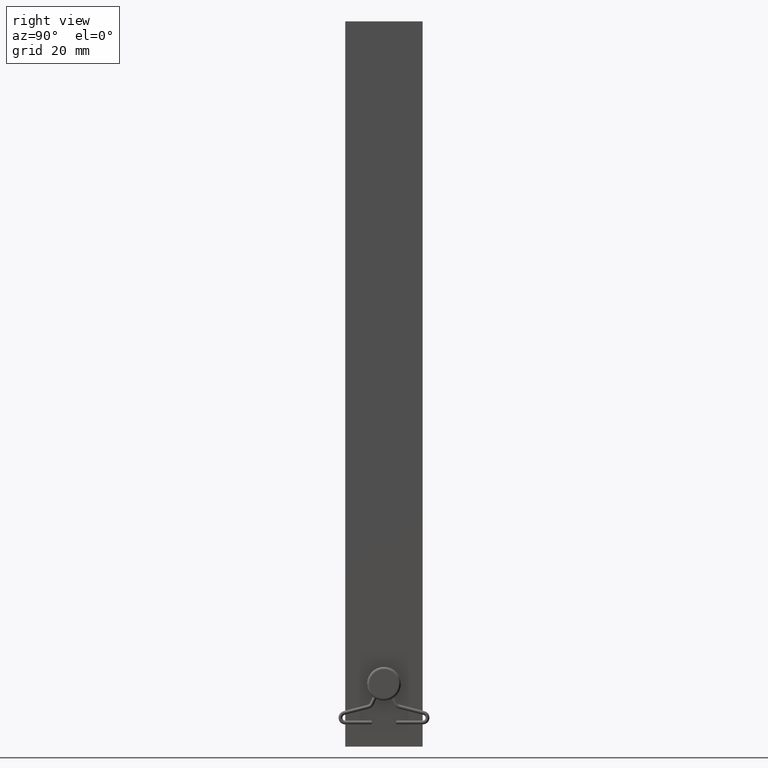
[diagram: clean part render]
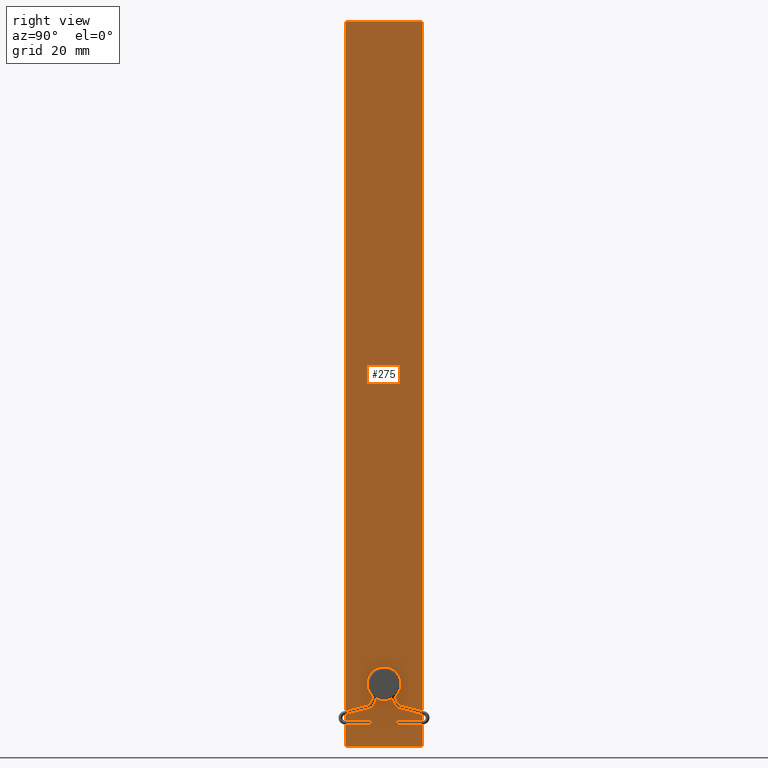
[diagram: same view with one face highlighted and labeled with its STEP entity id]
A machine part, right view. The second image highlights one B-rep face of the part: STEP entity #275.
In plain terms, the highlighted planar face has unit normal (1, 0, -0).
Its self-contained STEP definition (entity closure, byte-faithful):
#64 = ORIENTED_EDGE ( 'NONE', *, *, #2364, .F. ) ;
#79 = CARTESIAN_POINT ( 'NONE',  ( 0.5000000000000008882, -8.000000000000001776, 150.0000000000000000 ) ) ;
#234 = VERTEX_POINT ( 'NONE', #404 ) ;
#261 = EDGE_LOOP ( 'NONE', ( #281, #2289, #1966, #2475 ) ) ;
#275 = ADVANCED_FACE ( 'NONE', ( #1351, #2538 ), #2555, .T. ) ;
#281 = ORIENTED_EDGE ( 'NONE', *, *, #652, .F. ) ;
#302 = DIRECTION ( 'NONE',  ( -3.794707603699266505E-16, 1.000000000000000000, 0.000000000000000000 ) ) ;
#354 = DIRECTION ( 'NONE',  ( 1.000000000000000000, 3.794707603699264533E-16, 0.000000000000000000 ) ) ;
#394 = VERTEX_POINT ( 'NONE', #1901 ) ;
#404 = CARTESIAN_POINT ( 'NONE',  ( 0.5000000000000006661, -1.999999999999999556, 13.00000000000000000 ) ) ;
#410 = ORIENTED_EDGE ( 'NONE', *, *, #1767, .F. ) ;
#604 = VECTOR ( 'NONE', #876, 1000.000000000000000 ) ;
#650 = VERTEX_POINT ( 'NONE', #2510 ) ;
#652 = EDGE_CURVE ( 'NONE', #650, #394, #1311, .T. ) ;
#709 = EDGE_CURVE ( 'NONE', #2074, #650, #3083, .T. ) ;
#800 = CIRCLE ( 'NONE', #1045, 1.999999999999999556 ) ;
#817 = CARTESIAN_POINT ( 'NONE',  ( 0.5000000000000008882, -8.000000000000001776, 150.0000000000000000 ) ) ;
#818 = CARTESIAN_POINT ( 'NONE',  ( 0.4999999999999998890, 6.098637220230962441E-17, 13.00000000000000000 ) ) ;
#819 = VECTOR ( 'NONE', #1960, 1000.000000000000000 ) ;
#876 = DIRECTION ( 'NONE',  ( 1.219727444046192488E-16, -1.000000000000000000, 0.000000000000000000 ) ) ;
#1031 = DIRECTION ( 'NONE',  ( 1.219727444046192488E-16, -1.000000000000000000, 0.000000000000000000 ) ) ;
#1045 = AXIS2_PLACEMENT_3D ( 'NONE', #818, #354, #302 ) ;
#1078 = CARTESIAN_POINT ( 'NONE',  ( 0.4999999999999989453, 7.999999999999998224, 150.0000000000000000 ) ) ;
#1138 = VERTEX_POINT ( 'NONE', #2675 ) ;
#1311 = LINE ( 'NONE', #2530, #604 ) ;
#1323 = EDGE_CURVE ( 'NONE', #2074, #2397, #1483, .T. ) ;
#1351 = FACE_BOUND ( 'NONE', #2394, .T. ) ;
#1419 = EDGE_CURVE ( 'NONE', #2397, #394, #2201, .T. ) ;
#1454 = DIRECTION ( 'NONE',  ( 1.000000000000000000, 3.794707603699264533E-16, 0.000000000000000000 ) ) ;
#1483 = LINE ( 'NONE', #2262, #2273 ) ;
#1767 = EDGE_CURVE ( 'NONE', #1138, #234, #2124, .T. ) ;
#1847 = CARTESIAN_POINT ( 'NONE',  ( 0.4999999999999989453, 7.999999999999998224, 150.0000000000000000 ) ) ;
#1901 = CARTESIAN_POINT ( 'NONE',  ( 0.5000000000000008882, -8.000000000000001776, 0.000000000000000000 ) ) ;
#1944 = DIRECTION ( 'NONE',  ( -3.794707603699266505E-16, 1.000000000000000000, 0.000000000000000000 ) ) ;
#1960 = DIRECTION ( 'NONE',  ( -0.000000000000000000, -0.000000000000000000, -1.000000000000000000 ) ) ;
#1966 = ORIENTED_EDGE ( 'NONE', *, *, #1323, .T. ) ;
#2074 = VERTEX_POINT ( 'NONE', #1078 ) ;
#2093 = DIRECTION ( 'NONE',  ( 1.000000000000000000, 1.219727444046192488E-16, -0.000000000000000000 ) ) ;
#2124 = CIRCLE ( 'NONE', #2374, 1.999999999999999556 ) ;
#2201 = LINE ( 'NONE', #817, #819 ) ;
#2262 = CARTESIAN_POINT ( 'NONE',  ( 0.4999999999999989453, 7.999999999999998224, 150.0000000000000000 ) ) ;
#2273 = VECTOR ( 'NONE', #1031, 1000.000000000000000 ) ;
#2289 = ORIENTED_EDGE ( 'NONE', *, *, #709, .F. ) ;
#2313 = CARTESIAN_POINT ( 'NONE',  ( 0.4999999999999989453, 7.999999999999998224, 150.0000000000000000 ) ) ;
#2364 = EDGE_CURVE ( 'NONE', #234, #1138, #800, .T. ) ;
#2374 = AXIS2_PLACEMENT_3D ( 'NONE', #2657, #1454, #1944 ) ;
#2394 = EDGE_LOOP ( 'NONE', ( #64, #410 ) ) ;
#2397 = VERTEX_POINT ( 'NONE', #79 ) ;
#2466 = AXIS2_PLACEMENT_3D ( 'NONE', #2313, #2093, #2601 ) ;
#2475 = ORIENTED_EDGE ( 'NONE', *, *, #1419, .T. ) ;
#2510 = CARTESIAN_POINT ( 'NONE',  ( 0.4999999999999989453, 7.999999999999998224, 0.000000000000000000 ) ) ;
#2530 = CARTESIAN_POINT ( 'NONE',  ( 0.4999999999999989453, 7.999999999999998224, 0.000000000000000000 ) ) ;
#2538 = FACE_OUTER_BOUND ( 'NONE', #261, .T. ) ;
#2555 = PLANE ( 'NONE',  #2466 ) ;
#2593 = DIRECTION ( 'NONE',  ( -0.000000000000000000, -0.000000000000000000, -1.000000000000000000 ) ) ;
#2601 = DIRECTION ( 'NONE',  ( -1.219727444046192488E-16, 1.000000000000000000, 0.000000000000000000 ) ) ;
#2657 = CARTESIAN_POINT ( 'NONE',  ( 0.4999999999999998890, 6.098637220230962441E-17, 13.00000000000000000 ) ) ;
#2675 = CARTESIAN_POINT ( 'NONE',  ( 0.4999999999999991673, 1.999999999999999556, 13.00000000000000000 ) ) ;
#2982 = VECTOR ( 'NONE', #2593, 1000.000000000000000 ) ;
#3083 = LINE ( 'NONE', #1847, #2982 ) ;